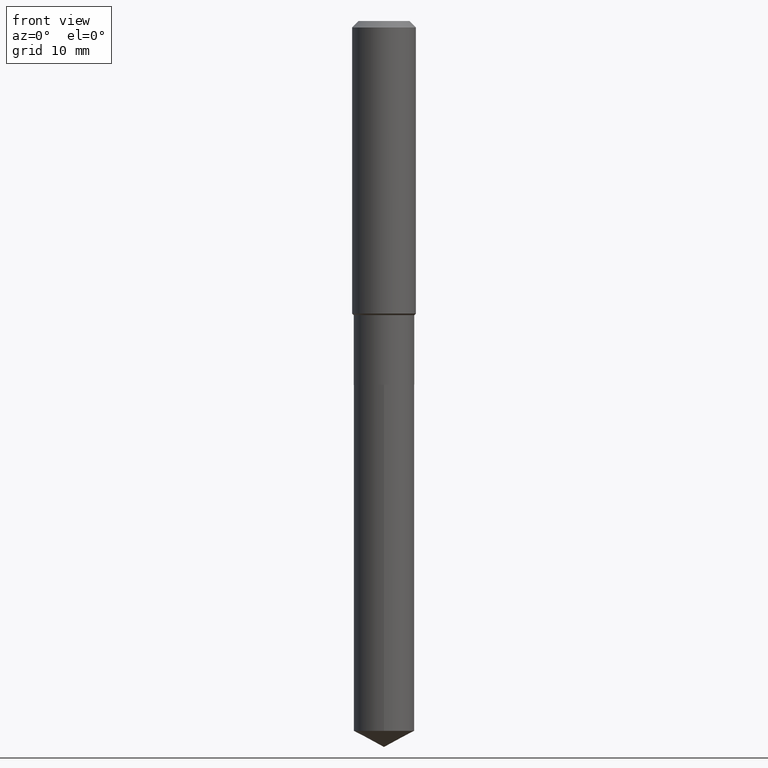
[diagram: clean part render]
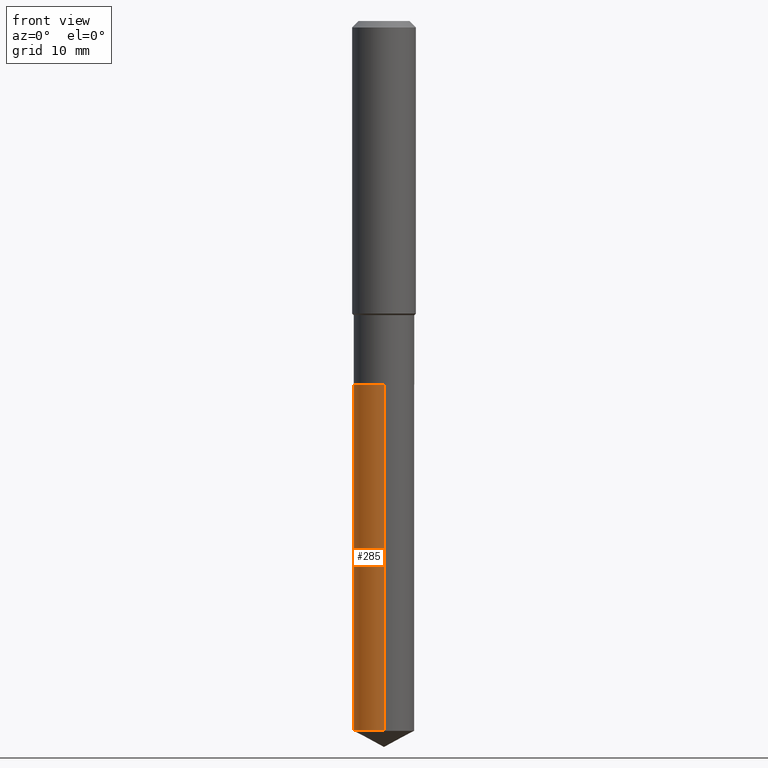
[diagram: same view with one face highlighted and labeled with its STEP entity id]
A machine part, front view. The second image highlights one B-rep face of the part: STEP entity #285.
In plain terms, the highlighted cylindrical surface (edge-blend (fillet) strip) has radius 3.7998 mm, axis along (-0, 0, 1).
Its self-contained STEP definition (entity closure, byte-faithful):
#36 = CIRCLE ( 'NONE', #172, 0.1496000000000000107 ) ;
#49 = EDGE_CURVE ( 'NONE', #119, #156, #36, .T. ) ;
#80 = CARTESIAN_POINT ( 'NONE',  ( -1.044651216581821622E-15, -0.1496000000000062835, -1.795299999999999452 ) ) ;
#85 = CARTESIAN_POINT ( 'NONE',  ( -1.044651216581780009E-15, -0.1496000000000122510, -3.503156269023442793 ) ) ;
#87 = CARTESIAN_POINT ( 'NONE',  ( 4.390350147744175670E-29, -6.268256447625099205E-15, -1.795300000000000118 ) ) ;
#89 = DIRECTION ( 'NONE',  ( -2.445434716319328543E-29, 3.491530157471257192E-15, 1.000000000000000000 ) ) ;
#97 = DIRECTION ( 'NONE',  ( -2.445434716319328543E-29, 3.491530157471257586E-15, 1.000000000000000000 ) ) ;
#100 = CARTESIAN_POINT ( 'NONE',  ( 1.062971932697195546E-15, 0.1495999999999878260, -3.503156269023444125 ) ) ;
#105 = VECTOR ( 'NONE', #89, 39.37007874015748143 ) ;
#119 = VERTEX_POINT ( 'NONE', #245 ) ;
#123 = EDGE_CURVE ( 'NONE', #323, #253, #351, .T. ) ;
#127 = CYLINDRICAL_SURFACE ( 'NONE', #246, 0.1496000000000000107 ) ;
#156 = VERTEX_POINT ( 'NONE', #388 ) ;
#171 = ORIENTED_EDGE ( 'NONE', *, *, #266, .T. ) ;
#172 = AXIS2_PLACEMENT_3D ( 'NONE', #325, #235, #190 ) ;
#178 = CARTESIAN_POINT ( 'NONE',  ( 1.062971932697153933E-15, 0.1495999999999937657, -1.795300000000000562 ) ) ;
#181 = ORIENTED_EDGE ( 'NONE', *, *, #279, .F. ) ;
#190 = DIRECTION ( 'NONE',  ( -6.982962677686265922E-15, -1.000000000000000000, 3.652203200085913145E-15 ) ) ;
#192 = EDGE_LOOP ( 'NONE', ( #181, #319, #171, #330 ) ) ;
#208 = CARTESIAN_POINT ( 'NONE',  ( 8.566801158497707259E-29, -1.223128811554679691E-14, -3.503156269023443237 ) ) ;
#235 = DIRECTION ( 'NONE',  ( -2.445434716319328543E-29, 3.491530157471257586E-15, 1.000000000000000000 ) ) ;
#245 = CARTESIAN_POINT ( 'NONE',  ( 1.062971932697195743E-15, 0.1495999999999937102, -1.795300000000000562 ) ) ;
#246 = AXIS2_PLACEMENT_3D ( 'NONE', #87, #97, #411 ) ;
#253 = VERTEX_POINT ( 'NONE', #85 ) ;
#266 = EDGE_CURVE ( 'NONE', #253, #156, #406, .T. ) ;
#279 = EDGE_CURVE ( 'NONE', #323, #119, #471, .T. ) ;
#285 = ADVANCED_FACE ( 'NONE', ( #329 ), #127, .T. ) ;
#293 = DIRECTION ( 'NONE',  ( -6.982962677686266711E-15, -1.000000000000000000, 3.652203200085913145E-15 ) ) ;
#319 = ORIENTED_EDGE ( 'NONE', *, *, #123, .T. ) ;
#320 = VECTOR ( 'NONE', #482, 39.37007874015748143 ) ;
#323 = VERTEX_POINT ( 'NONE', #100 ) ;
#325 = CARTESIAN_POINT ( 'NONE',  ( 4.390350147744175670E-29, -6.268256447625099205E-15, -1.795300000000000118 ) ) ;
#329 = FACE_OUTER_BOUND ( 'NONE', #192, .T. ) ;
#330 = ORIENTED_EDGE ( 'NONE', *, *, #49, .F. ) ;
#351 = CIRCLE ( 'NONE', #409, 0.1496000000000000107 ) ;
#388 = CARTESIAN_POINT ( 'NONE',  ( -1.044651216581821425E-15, -0.1496000000000062835, -1.795299999999999452 ) ) ;
#399 = DIRECTION ( 'NONE',  ( -2.445434716319328543E-29, 3.491530157471257586E-15, 1.000000000000000000 ) ) ;
#406 = LINE ( 'NONE', #80, #105 ) ;
#409 = AXIS2_PLACEMENT_3D ( 'NONE', #208, #399, #293 ) ;
#411 = DIRECTION ( 'NONE',  ( -6.982962677686266711E-15, -1.000000000000000000, 3.652203200085913145E-15 ) ) ;
#471 = LINE ( 'NONE', #178, #320 ) ;
#482 = DIRECTION ( 'NONE',  ( -2.445434716319328543E-29, 3.491530157471257192E-15, 1.000000000000000000 ) ) ;